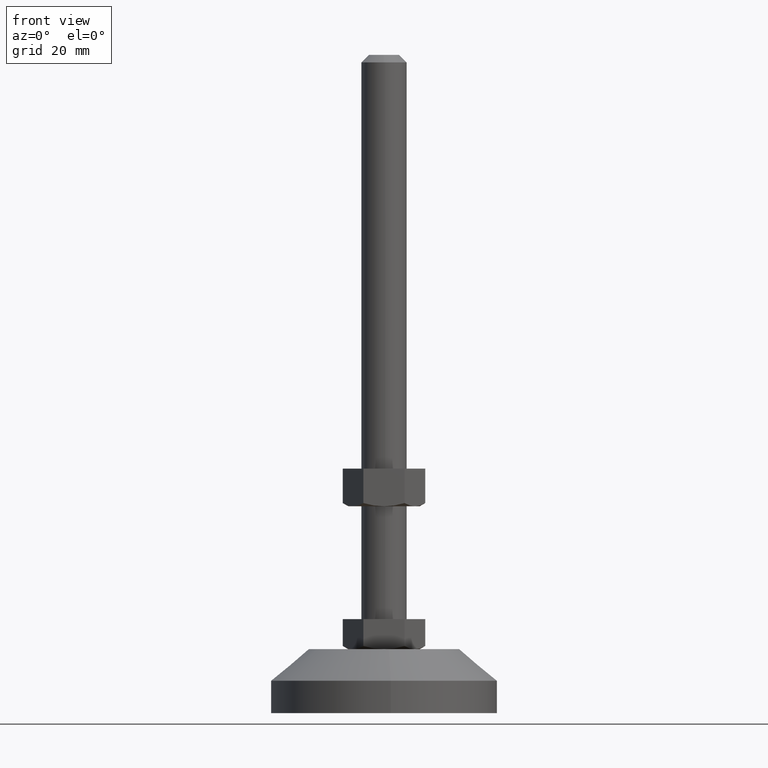
[diagram: clean part render]
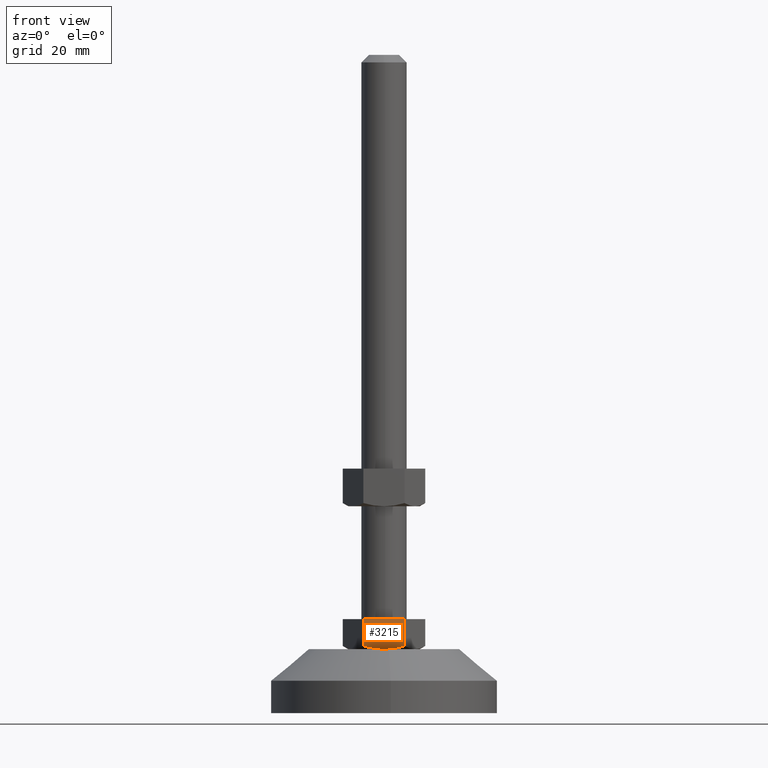
[diagram: same view with one face highlighted and labeled with its STEP entity id]
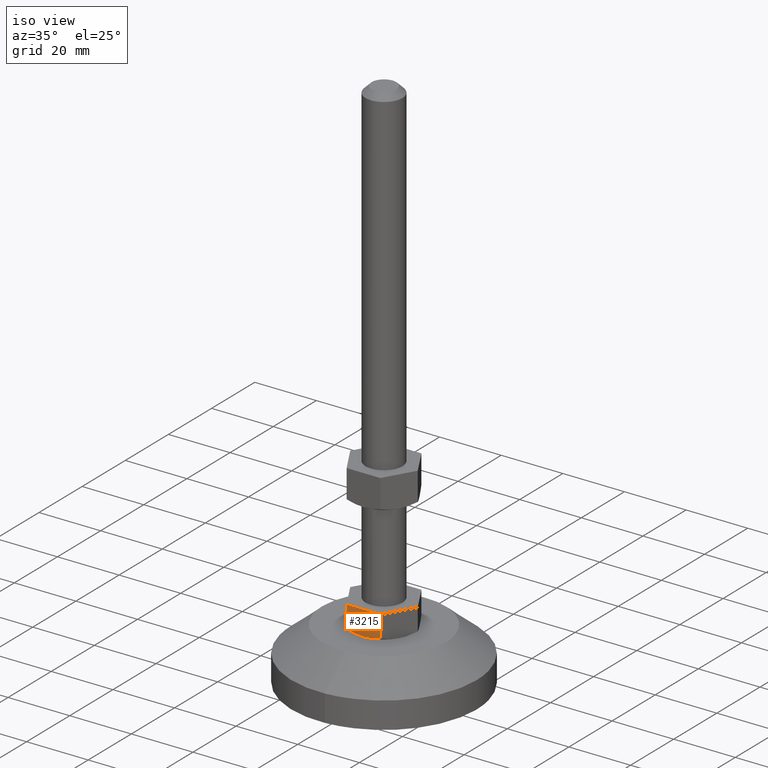
[diagram: same view with one face highlighted and labeled with its STEP entity id]
A machine part, front view. The second image highlights one B-rep face of the part: STEP entity #3215.
A second angle (iso view) of the same face is appended — the face is thin or edge-on in the first view.
In plain terms, the highlighted face is a freeform B-spline surface patch.
Its self-contained STEP definition (entity closure, byte-faithful):
#3111=CARTESIAN_POINT('',(-5.484827000000000,-9.499999999999890,25.0));
#3112=VERTEX_POINT('',#3111);
#3120=CARTESIAN_POINT('',(5.484827999999999,-9.499999999999890,25.0));
#3121=VERTEX_POINT('',#3120);
#3122=CARTESIAN_POINT('',(5.484827999999999,-9.499999999999890,25.0));
#3123=CARTESIAN_POINT('',(-5.484827000000000,-9.499999999999890,25.0));
#3124=QUASI_UNIFORM_CURVE('',1,(#3122,#3123),.UNSPECIFIED.,.F.,.U.);
#3125=EDGE_CURVE('',#3121,#3112,#3124,.T.);
#3162=CARTESIAN_POINT('',(-6.032761245988681,-9.499999999999890,25.399599989225369));
#3163=CARTESIAN_POINT('',(-6.032761245988681,-9.499999999999890,16.600399701484811));
#3164=CARTESIAN_POINT('',(6.032762540217756,-9.499999999999890,25.399599989225369));
#3165=CARTESIAN_POINT('',(6.032762540217756,-9.499999999999890,16.600399701484811));
#3166=B_SPLINE_SURFACE_WITH_KNOTS('',1,1,((#3162,#3164),(#3163,#3165)),.UNSPECIFIED.,.F.,.F.,.U.,(2,2),(2,2),(0.0,8.799200287740561),(0.0,12.065523786206439),.UNSPECIFIED.);
#3167=CARTESIAN_POINT('',(-5.484827000000000,-9.499999999999890,17.848505520439751));
#3168=VERTEX_POINT('',#3167);
#3169=CARTESIAN_POINT('',(-5.484827000000000,-9.499999999999890,25.0));
#3170=CARTESIAN_POINT('',(-5.484827000000000,-9.499999999999890,17.848505520439751));
#3171=QUASI_UNIFORM_CURVE('',1,(#3169,#3170),.UNSPECIFIED.,.F.,.U.);
#3172=EDGE_CURVE('',#3112,#3168,#3171,.T.);
#3173=ORIENTED_EDGE('',*,*,#3172,.T.);
#3174=CARTESIAN_POINT('',(-1.132607E-024,-9.499999999999890,16.999999905286899));
#3175=VERTEX_POINT('',#3174);
#3176=CARTESIAN_POINT('',(-5.484827000000012,-9.499999999999890,17.848505520439719));
#3177=CARTESIAN_POINT('',(-5.038593894706897,-9.499999999999892,17.719689128525140));
#3178=CARTESIAN_POINT('',(-4.588252382822602,-9.499999999999890,17.601429248809861));
#3179=CARTESIAN_POINT('',(-3.677182193346516,-9.499999999999888,17.391599214233480));
#3180=CARTESIAN_POINT('',(-3.220513125358659,-9.499999999999890,17.301027045514019));
#3181=CARTESIAN_POINT('',(-2.304626240667699,-9.499999999999888,17.153373629165671));
#3182=CARTESIAN_POINT('',(-1.845391368718814,-9.499999999999890,17.096321093359968));
#3183=CARTESIAN_POINT('',(-0.924607508386920,-9.499999999999888,17.019643318680789));
#3184=CARTESIAN_POINT('',(-0.463059901053536,-9.499999999999890,17.000000141574841));
#3185=CARTESIAN_POINT('',(1.772065E-011,-9.499999999999890,16.999999905720941));
#3186=B_SPLINE_CURVE_WITH_KNOTS('',3,(#3176,#3177,#3178,#3179,#3180,#3181,#3182,#3183,#3184,#3185),.UNSPECIFIED.,.F.,.U.,(4,2,2,2,4),(0.0,0.125000000000000,0.250000000000000,0.375000000000000,0.499847026889262),.UNSPECIFIED.);
#3187=EDGE_CURVE('',#3168,#3175,#3186,.T.);
#3188=ORIENTED_EDGE('',*,*,#3187,.T.);
#3189=CARTESIAN_POINT('',(5.484827999999999,-9.499999999999890,17.848505809114851));
#3190=VERTEX_POINT('',#3189);
#3191=CARTESIAN_POINT('',(-1.132607E-024,-9.499999999999890,16.999999905286899));
#3192=CARTESIAN_POINT('',(0.000567380319518,-9.499999999999890,16.999999905431959));
#3193=CARTESIAN_POINT('',(0.001134762528071,-9.499999999999890,16.999999934633351));
#3194=CARTESIAN_POINT('',(0.465333138770774,-9.499999999999888,17.000047954001680));
#3195=CARTESIAN_POINT('',(0.930480828674591,-9.499999999999892,17.019796064005760));
#3196=CARTESIAN_POINT('',(1.513787472117699,-9.499999999999890,17.068796713291569));
#3197=CARTESIAN_POINT('',(1.630409215568117,-9.499999999999890,17.079797927906970));
#3198=CARTESIAN_POINT('',(1.862806757100825,-9.499999999999892,17.104059784623800));
#3199=CARTESIAN_POINT('',(2.210479156294781,-9.499999999999892,17.143869134533261));
#3200=CARTESIAN_POINT('',(2.555479663553125,-9.499999999999892,17.193558950449479));
#3201=CARTESIAN_POINT('',(3.700012399969559,-9.499999999999890,17.379415474045860));
#3202=CARTESIAN_POINT('',(4.598207278512633,-9.499999999999890,17.592560437511320));
#3203=CARTESIAN_POINT('',(5.484827999999995,-9.499999999999890,17.848505809114879));
#3204=B_SPLINE_CURVE_WITH_KNOTS('',3,(#3191,#3192,#3193,#3194,#3195,#3196,#3197,#3198,#3199,#3200,#3201,#3202,#3203),.UNSPECIFIED.,.F.,.U.,(4,2,2,2,1,2,4),(0.499847026921946,0.500000000000000,0.625000000000000,0.656250000000000,0.687500000000000,0.750000000000000,1.0),.UNSPECIFIED.);
#3205=EDGE_CURVE('',#3175,#3190,#3204,.T.);
#3206=ORIENTED_EDGE('',*,*,#3205,.T.);
#3207=CARTESIAN_POINT('',(5.484827999999999,-9.499999999999890,25.0));
#3208=CARTESIAN_POINT('',(5.484827999999999,-9.499999999999890,17.848505809114851));
#3209=QUASI_UNIFORM_CURVE('',1,(#3207,#3208),.UNSPECIFIED.,.F.,.U.);
#3210=EDGE_CURVE('',#3121,#3190,#3209,.T.);
#3211=ORIENTED_EDGE('',*,*,#3210,.F.);
#3212=ORIENTED_EDGE('',*,*,#3125,.T.);
#3213=EDGE_LOOP('',(#3173,#3188,#3206,#3211,#3212));
#3214=FACE_OUTER_BOUND('',#3213,.T.);
#3215=ADVANCED_FACE('',(#3214),#3166,.T.);